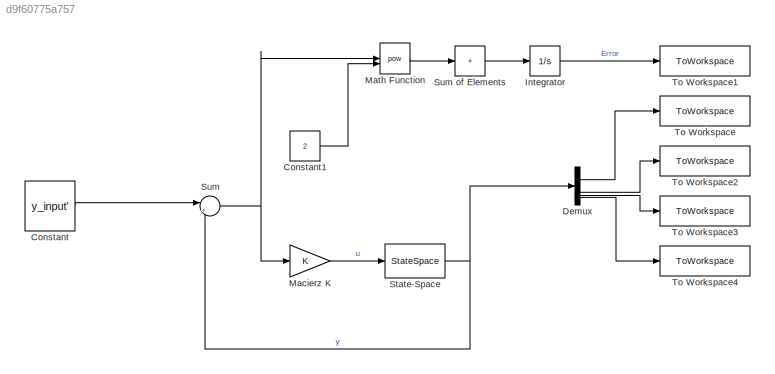
MODEL slx_d9f60775a757
KIND model
CONFIG AbsTol = auto
CONFIG EnableMultiTasking = off
CONFIG FixedStep = 0.001
CONFIG MaxStep = auto
CONFIG MinStep = auto
CONFIG RelTol = 1e-3
CONFIG SampleTimeConstraint = Unconstrained
CONFIG SolverName = FixedStepAuto
CONFIG StartTime = 0.0
CONFIG StopTime = 40
BLOCK [Constant] Constant
  Value = y_input'
  VectorParams1D = off
BLOCK [Constant] Constant1
  Value = 2
BLOCK [Demux] Demux
BLOCK [Integrator] Integrator
BLOCK [Gain] Macierz K
  Gain = K
  Multiplication = Matrix(K*u)
BLOCK [Math] Math Function
  Operator = pow
BLOCK [StateSpace] State-Space
  A = A
  B = B
  C = C
  D = D
  InitialCondition = 0
BLOCK [Sum] Sum
  Inputs = |+-
BLOCK [Sum] Sum of Elements
  IconShape = rectangular
  Inputs = +
BLOCK [ToWorkspace] To Workspace
  FixptAsFi = on
  MaxDataPoints = inf
  SampleTime = -1
  Save2DSignal = 2-D array (concatenate along first dimension)
  VariableName = output
BLOCK [ToWorkspace] To Workspace1
  FixptAsFi = on
  MaxDataPoints = inf
  SampleTime = -1
  Save2DSignal = 2-D array (concatenate along first dimension)
  VariableName = error
BLOCK [ToWorkspace] To Workspace2
  FixptAsFi = on
  MaxDataPoints = inf
  SampleTime = -1
  Save2DSignal = 2-D array (concatenate along first dimension)
  VariableName = output1
BLOCK [ToWorkspace] To Workspace3
  FixptAsFi = on
  MaxDataPoints = inf
  SampleTime = -1
  Save2DSignal = 2-D array (concatenate along first dimension)
  VariableName = output2
BLOCK [ToWorkspace] To Workspace4
  FixptAsFi = on
  MaxDataPoints = inf
  SampleTime = -1
  Save2DSignal = 2-D array (concatenate along first dimension)
  VariableName = output3
LINE Constant1:1 -> Math Function:2
LINE Constant:1 -> Sum:1
LINE Demux:1 -> To Workspace:1
LINE Demux:2 -> To Workspace2:1
LINE Demux:3 -> To Workspace3:1
LINE Demux:4 -> To Workspace4:1
LINE Integrator:1 -> To Workspace1:1
LINE Macierz K:1 -> State-Space:1
LINE Math Function:1 -> Sum of Elements:1
NET State-Space:1 -> Demux:1, Sum:2
LINE Sum of Elements:1 -> Integrator:1
NET Sum:1 -> Macierz K:1, Math Function:1
note: NET lines group one-source signal fan-out (src -> all destinations, sorted); 1:1 wires keep LINE
